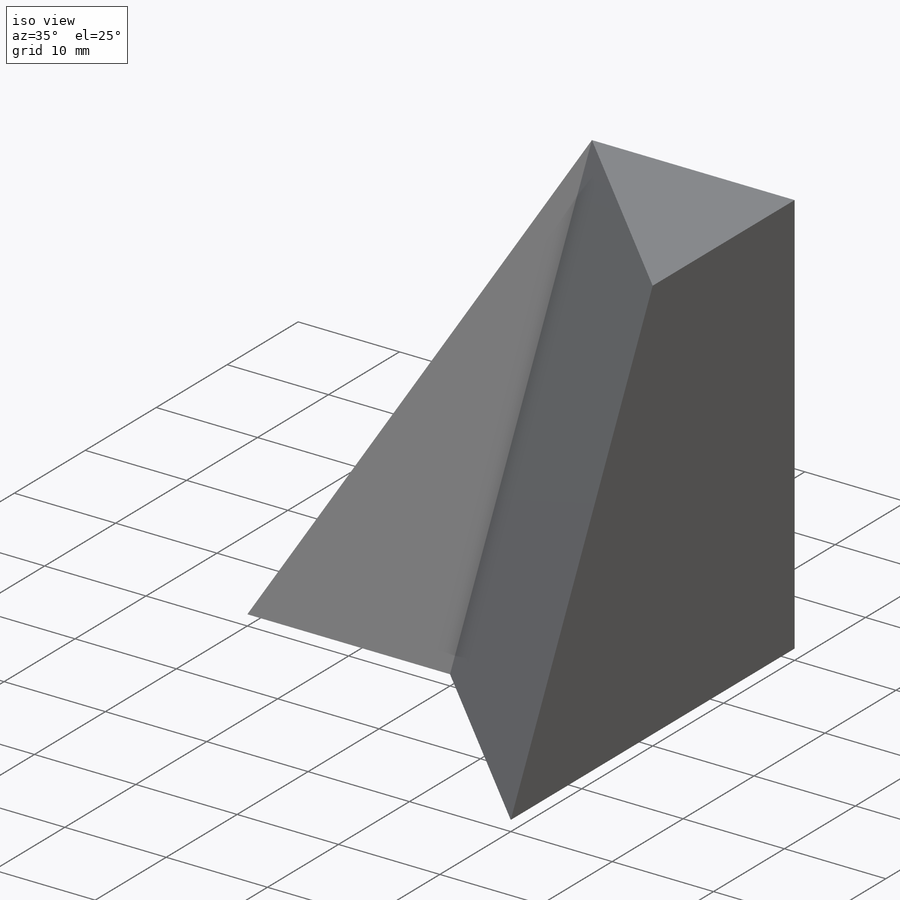
[diagram: iso view]
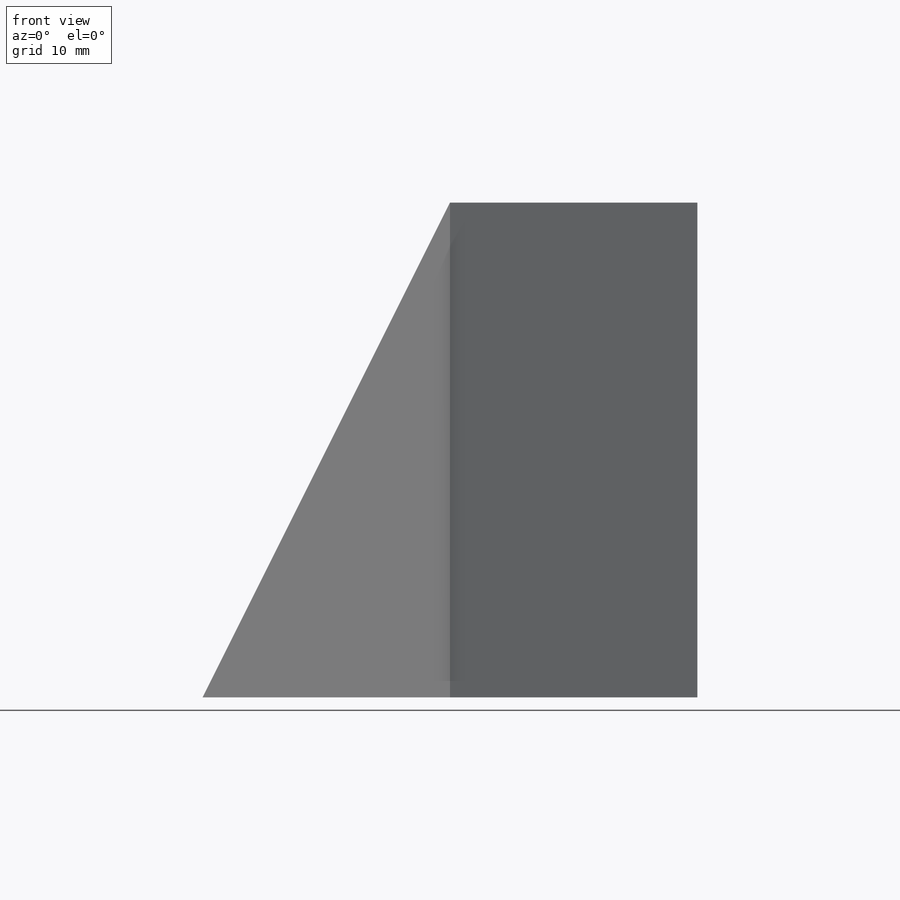
[diagram: front view]
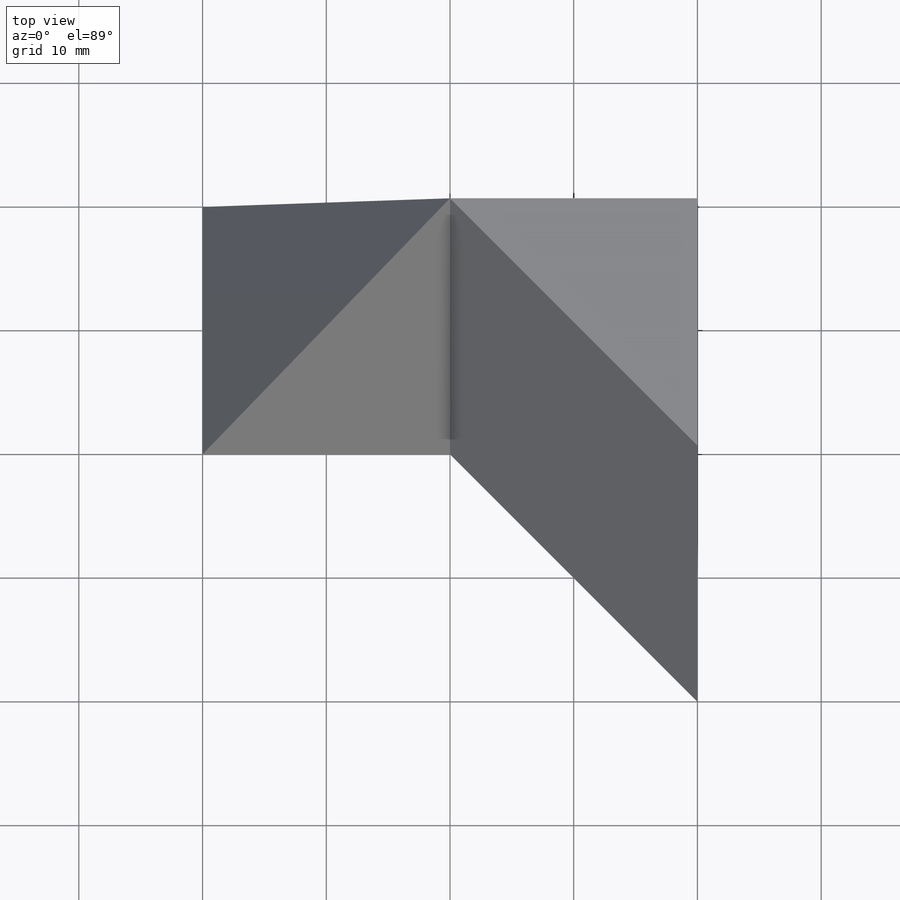
[diagram: top view]
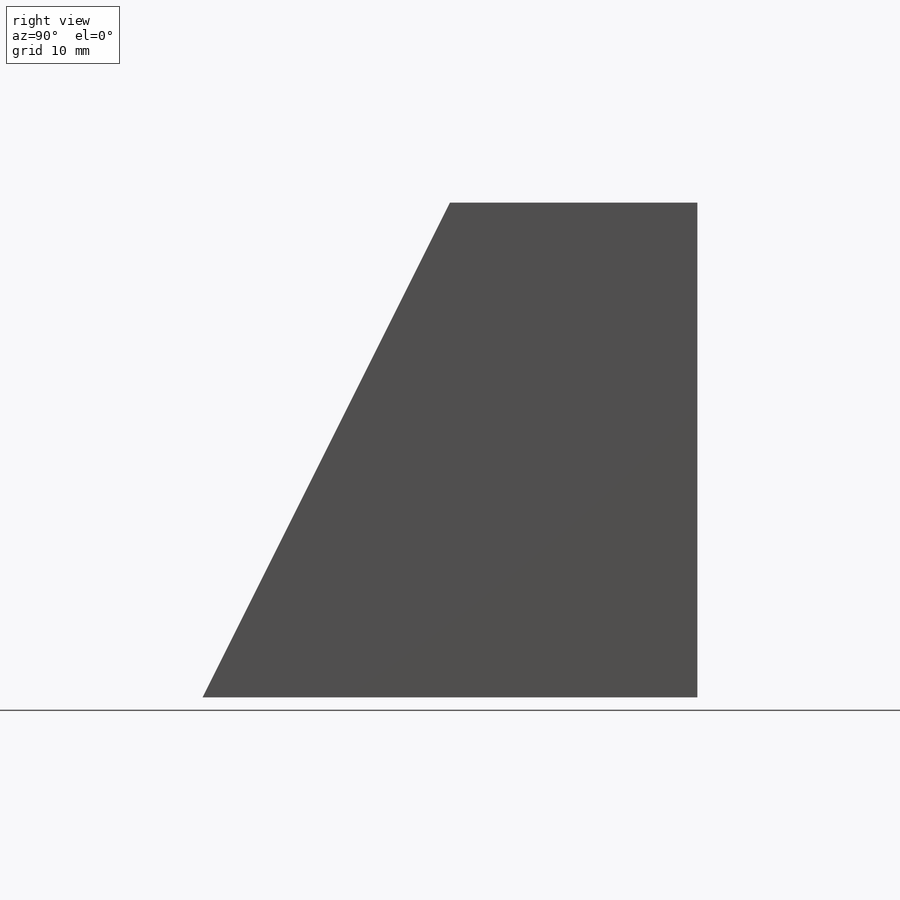
[diagram: right view]
SOLIDWORKS PART (.sldprt)
format: sldprt  version: not decoded by parser v0  size: 223,744 bytes
history: native  units: mm
features: sketch x12, cut_extrude x10, plane x6, extrude x2, material x1 (+13 scaffold rows collapsed)
feature tree (44):
  scaffold x13  (default folders/planes/origin — collapsed)
  material  "Material <not specified>"
  sketch  "Sketch1"  dims[D1=40.0mm D2=40.0mm]
  extrude  "Boss-Extrude1"  Depth=40mm
  sketch  "Sketch2"
  cut_extrude  "Cut-Extrude1"  Depth=40mm
  sketch  "Sketch3"  dims[D1=20.0mm D2=20.0mm]
  cut_extrude  "Cut-Extrude2"  Depth=40mm
  sketch  "Sketch4"
  cut_extrude  "Cut-Extrude3"  Depth=40mm
  sketch  "Sketch5"
  cut_extrude  "Cut-Extrude4"  Depth=20mm
  plane  "Plane1"
  sketch  "Sketch13"
  extrude  "Boss-Extrude5"  Depth=20mm
  plane  "Plane3"
  plane  "Plane5"
  sketch  "Sketch16"
  cut_extrude  "Cut-Extrude11"  Depth=20mm
  plane  "Plane6"
  plane  "Plane7"
  sketch  "Sketch18"
  cut_extrude  "Cut-Extrude13"  Depth=20mm
  plane  "Plane8"
  sketch  "Sketch19"
  cut_extrude  "Cut-Extrude14"  Depth=20mm
  sketch  "Sketch20"
  cut_extrude  "Cut-Extrude15"  Depth=20mm
  sketch  "Sketch21"
  cut_extrude  "Cut-Extrude16"  Depth=20mm
  sketch  "Sketch22"  dims[D1=0.0mm]
  cut_extrude  "Cut-Extrude17"  Depth=20mm
decode coverage: 15 of 24 modeling features carry decoded parameters
note: suppression state not decoded; provenance and decode notes live in map.json
